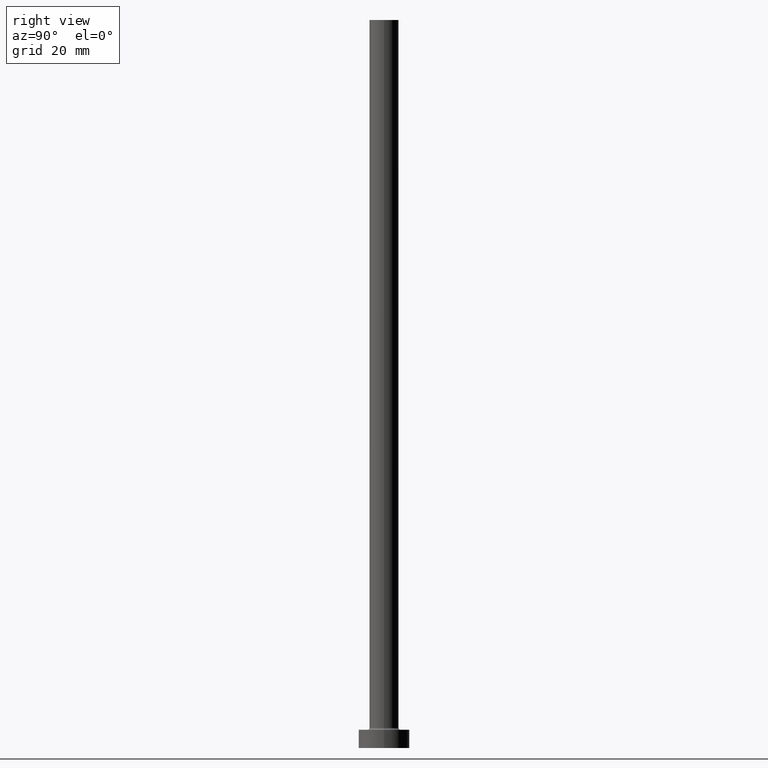
[diagram: clean part render]
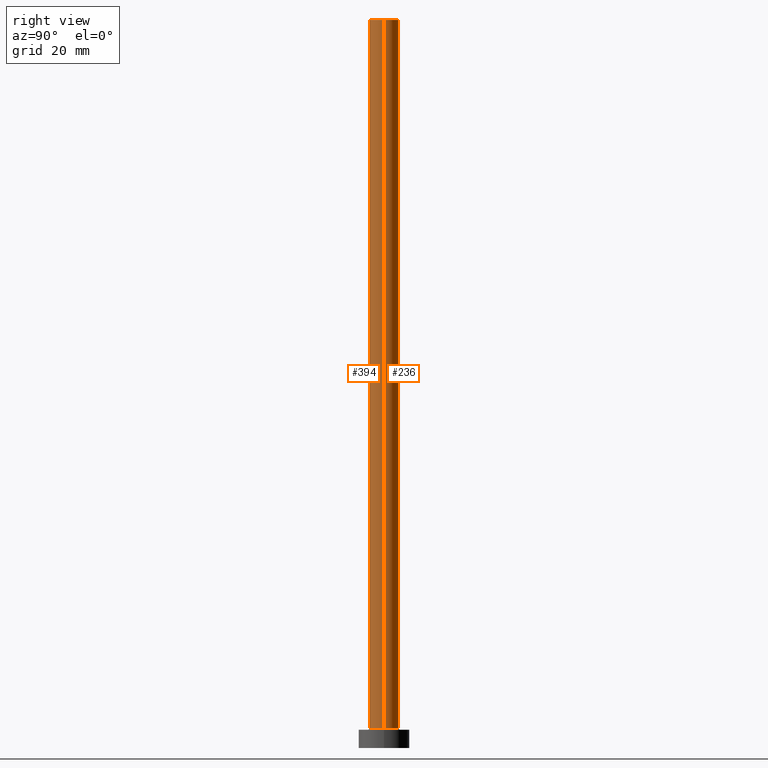
[diagram: same view with one multi-face feature highlighted, each face labeled with its STEP entity id]
A machine part, right view. The highlighted faces form ONE feature: a constant-radius fillet chain: 2 tangent blend faces with common blend radius 4 mm. The faces share edges in the B-rep.
Their STEP definitions:
[1] entity #236 (Cylinder):
#43 = CARTESIAN_POINT ( 'NONE',  ( 0.000000000000000000, 0.000000000000000000, 5.500000000000005329 ) ) ;
#46 = LINE ( 'NONE', #148, #283 ) ;
#48 = CARTESIAN_POINT ( 'NONE',  ( 0.000000000000000000, 0.000000000000000000, 200.0000000000000000 ) ) ;
#49 = VERTEX_POINT ( 'NONE', #247 ) ;
#75 = DIRECTION ( 'NONE',  ( 0.000000000000000000, 0.000000000000000000, 1.000000000000000000 ) ) ;
#81 = CARTESIAN_POINT ( 'NONE',  ( 0.000000000000000000, 0.000000000000000000, 200.0000000000000000 ) ) ;
#84 = EDGE_CURVE ( 'NONE', #375, #49, #427, .T. ) ;
#108 = EDGE_CURVE ( 'NONE', #272, #375, #46, .T. ) ;
#109 = DIRECTION ( 'NONE',  ( -0.000000000000000000, -0.000000000000000000, -1.000000000000000000 ) ) ;
#119 = ORIENTED_EDGE ( 'NONE', *, *, #139, .F. ) ;
#135 = VECTOR ( 'NONE', #109, 1000.000000000000000 ) ;
#139 = EDGE_CURVE ( 'NONE', #195, #49, #286, .T. ) ;
#146 = FACE_OUTER_BOUND ( 'NONE', #165, .T. ) ;
#148 = CARTESIAN_POINT ( 'NONE',  ( 4.000000000000000000, 4.898587196589412829E-16, 200.0000000000000000 ) ) ;
#149 = AXIS2_PLACEMENT_3D ( 'NONE', #48, #366, #338 ) ;
#153 = ORIENTED_EDGE ( 'NONE', *, *, #84, .T. ) ;
#165 = EDGE_LOOP ( 'NONE', ( #264, #189, #153, #119 ) ) ;
#189 = ORIENTED_EDGE ( 'NONE', *, *, #108, .T. ) ;
#195 = VERTEX_POINT ( 'NONE', #252 ) ;
#206 = CARTESIAN_POINT ( 'NONE',  ( 4.000000000000000000, 4.898587196589412829E-16, 5.500000000000005329 ) ) ;
#236 = ADVANCED_FACE ( 'NONE', ( #146 ), #410, .T. ) ;
#247 = CARTESIAN_POINT ( 'NONE',  ( -4.000000000000000000, 0.000000000000000000, 5.500000000000005329 ) ) ;
#252 = CARTESIAN_POINT ( 'NONE',  ( -4.000000000000000000, 0.000000000000000000, 200.0000000000000000 ) ) ;
#253 = EDGE_CURVE ( 'NONE', #272, #195, #279, .T. ) ;
#264 = ORIENTED_EDGE ( 'NONE', *, *, #253, .F. ) ;
#272 = VERTEX_POINT ( 'NONE', #387 ) ;
#279 = CIRCLE ( 'NONE', #149, 4.000000000000000000 ) ;
#283 = VECTOR ( 'NONE', #333, 1000.000000000000000 ) ;
#286 = LINE ( 'NONE', #443, #135 ) ;
#288 = DIRECTION ( 'NONE',  ( -0.000000000000000000, -0.000000000000000000, -1.000000000000000000 ) ) ;
#333 = DIRECTION ( 'NONE',  ( -0.000000000000000000, -0.000000000000000000, -1.000000000000000000 ) ) ;
#338 = DIRECTION ( 'NONE',  ( 1.000000000000000000, 0.000000000000000000, 0.000000000000000000 ) ) ;
#362 = AXIS2_PLACEMENT_3D ( 'NONE', #81, #288, #435 ) ;
#366 = DIRECTION ( 'NONE',  ( 0.000000000000000000, 0.000000000000000000, 1.000000000000000000 ) ) ;
#372 = DIRECTION ( 'NONE',  ( 1.000000000000000000, 0.000000000000000000, 0.000000000000000000 ) ) ;
#375 = VERTEX_POINT ( 'NONE', #206 ) ;
#387 = CARTESIAN_POINT ( 'NONE',  ( 4.000000000000000000, 4.898587196589412829E-16, 200.0000000000000000 ) ) ;
#406 = AXIS2_PLACEMENT_3D ( 'NONE', #43, #75, #372 ) ;
#410 = CYLINDRICAL_SURFACE ( 'NONE', #362, 4.000000000000000000 ) ;
#427 = CIRCLE ( 'NONE', #406, 4.000000000000000000 ) ;
#435 = DIRECTION ( 'NONE',  ( -1.000000000000000000, 0.000000000000000000, 0.000000000000000000 ) ) ;
#443 = CARTESIAN_POINT ( 'NONE',  ( -4.000000000000000000, 0.000000000000000000, 200.0000000000000000 ) ) ;
[2] entity #394 (Cylinder):
#17 = CIRCLE ( 'NONE', #269, 4.000000000000000000 ) ;
#46 = LINE ( 'NONE', #148, #283 ) ;
#49 = VERTEX_POINT ( 'NONE', #247 ) ;
#55 = AXIS2_PLACEMENT_3D ( 'NONE', #181, #335, #438 ) ;
#72 = AXIS2_PLACEMENT_3D ( 'NONE', #359, #168, #208 ) ;
#106 = EDGE_CURVE ( 'NONE', #49, #375, #190, .T. ) ;
#108 = EDGE_CURVE ( 'NONE', #272, #375, #46, .T. ) ;
#109 = DIRECTION ( 'NONE',  ( -0.000000000000000000, -0.000000000000000000, -1.000000000000000000 ) ) ;
#133 = ORIENTED_EDGE ( 'NONE', *, *, #106, .T. ) ;
#135 = VECTOR ( 'NONE', #109, 1000.000000000000000 ) ;
#139 = EDGE_CURVE ( 'NONE', #195, #49, #286, .T. ) ;
#148 = CARTESIAN_POINT ( 'NONE',  ( 4.000000000000000000, 4.898587196589412829E-16, 200.0000000000000000 ) ) ;
#163 = DIRECTION ( 'NONE',  ( 1.000000000000000000, 0.000000000000000000, 0.000000000000000000 ) ) ;
#168 = DIRECTION ( 'NONE',  ( -0.000000000000000000, -0.000000000000000000, -1.000000000000000000 ) ) ;
#181 = CARTESIAN_POINT ( 'NONE',  ( 0.000000000000000000, 0.000000000000000000, 5.500000000000005329 ) ) ;
#190 = CIRCLE ( 'NONE', #55, 4.000000000000000000 ) ;
#195 = VERTEX_POINT ( 'NONE', #252 ) ;
#199 = CARTESIAN_POINT ( 'NONE',  ( 0.000000000000000000, 0.000000000000000000, 200.0000000000000000 ) ) ;
#200 = ORIENTED_EDGE ( 'NONE', *, *, #332, .F. ) ;
#206 = CARTESIAN_POINT ( 'NONE',  ( 4.000000000000000000, 4.898587196589412829E-16, 5.500000000000005329 ) ) ;
#208 = DIRECTION ( 'NONE',  ( -1.000000000000000000, 0.000000000000000000, 0.000000000000000000 ) ) ;
#237 = CYLINDRICAL_SURFACE ( 'NONE', #72, 4.000000000000000000 ) ;
#247 = CARTESIAN_POINT ( 'NONE',  ( -4.000000000000000000, 0.000000000000000000, 5.500000000000005329 ) ) ;
#248 = ORIENTED_EDGE ( 'NONE', *, *, #108, .F. ) ;
#251 = EDGE_LOOP ( 'NONE', ( #248, #200, #287, #133 ) ) ;
#252 = CARTESIAN_POINT ( 'NONE',  ( -4.000000000000000000, 0.000000000000000000, 200.0000000000000000 ) ) ;
#269 = AXIS2_PLACEMENT_3D ( 'NONE', #199, #414, #163 ) ;
#272 = VERTEX_POINT ( 'NONE', #387 ) ;
#283 = VECTOR ( 'NONE', #333, 1000.000000000000000 ) ;
#286 = LINE ( 'NONE', #443, #135 ) ;
#287 = ORIENTED_EDGE ( 'NONE', *, *, #139, .T. ) ;
#319 = FACE_OUTER_BOUND ( 'NONE', #251, .T. ) ;
#332 = EDGE_CURVE ( 'NONE', #195, #272, #17, .T. ) ;
#333 = DIRECTION ( 'NONE',  ( -0.000000000000000000, -0.000000000000000000, -1.000000000000000000 ) ) ;
#335 = DIRECTION ( 'NONE',  ( 0.000000000000000000, 0.000000000000000000, 1.000000000000000000 ) ) ;
#359 = CARTESIAN_POINT ( 'NONE',  ( 0.000000000000000000, 0.000000000000000000, 200.0000000000000000 ) ) ;
#375 = VERTEX_POINT ( 'NONE', #206 ) ;
#387 = CARTESIAN_POINT ( 'NONE',  ( 4.000000000000000000, 4.898587196589412829E-16, 200.0000000000000000 ) ) ;
#394 = ADVANCED_FACE ( 'NONE', ( #319 ), #237, .T. ) ;
#414 = DIRECTION ( 'NONE',  ( 0.000000000000000000, 0.000000000000000000, 1.000000000000000000 ) ) ;
#438 = DIRECTION ( 'NONE',  ( 1.000000000000000000, 0.000000000000000000, 0.000000000000000000 ) ) ;
#443 = CARTESIAN_POINT ( 'NONE',  ( -4.000000000000000000, 0.000000000000000000, 200.0000000000000000 ) ) ;